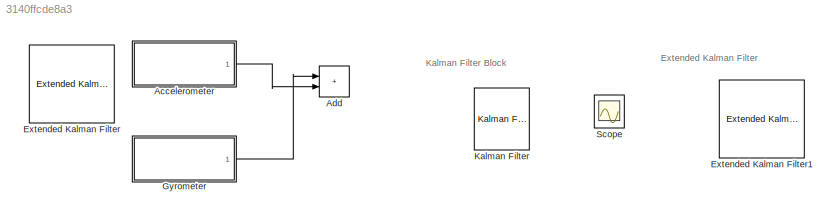
MODEL slx_3140ffcde8a3
KIND model
CONFIG AbsTol = auto
CONFIG EnableMultiTasking = off
CONFIG FixedStep = auto
CONFIG MaxStep = auto
CONFIG MinStep = auto
CONFIG RelTol = 1e-3
CONFIG SampleTimeConstraint = Unconstrained
CONFIG SolverName = VariableStepAuto
CONFIG StartTime = 0.0
CONFIG StopTime = 10.0
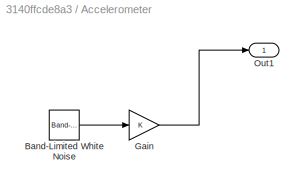
BLOCK [SubSystem] Accelerometer
  Ports = [0, 1]
  RequestExecContextInheritance = off
BLOCK [Reference] Accelerometer/Band-Limited White Noise  REF=simulink/Sources/Band-Limited
White Noise
  Ports = [0, 1]
  SourceBlock = simulink/Sources/Band-Limited\nWhite Noise
  SourceProductBaseCode = SL
  SourceType = Band-Limited White Noise.
BLOCK [Gain] Accelerometer/Gain
BLOCK [Outport] Accelerometer/Out1
BLOCK [Sum] Add
  IconShape = rectangular
  Ports = [2, 1]
BLOCK [Reference] Extended Kalman Filter  REF=sharedTrackingLibrary/Extended Kalman Filter
  Ports = [1, 1]
  SourceBlock = sharedTrackingLibrary/Extended Kalman Filter
  SourceProductBaseCode = AE,PW,CT,DR,TF,ID,LP,NV,AR,RO,RR,UV,VE
  SourceType = Extended Kalman Filter
BLOCK [Reference] Extended Kalman Filter1  REF=sharedTrackingLibrary/Extended Kalman Filter
  Ports = [1, 1]
  SourceBlock = sharedTrackingLibrary/Extended Kalman Filter
  SourceProductBaseCode = AE,PW,CT,DR,TF,ID,LP,NV,AR,RO,RR,UV,VE
  SourceType = Extended Kalman Filter
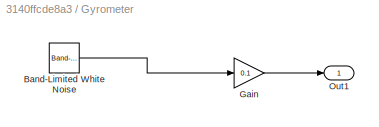
BLOCK [SubSystem] Gyrometer
  Ports = [0, 1]
  RequestExecContextInheritance = off
BLOCK [Reference] Gyrometer/Band-Limited White Noise  REF=simulink/Sources/Band-Limited
White Noise
  Ports = [0, 1]
  SourceBlock = simulink/Sources/Band-Limited\nWhite Noise
  SourceProductBaseCode = SL
  SourceType = Band-Limited White Noise.
BLOCK [Gain] Gyrometer/Gain
  Gain = 0.1
BLOCK [Outport] Gyrometer/Out1
BLOCK [Reference] Kalman Filter  REF=ctrlSharedLib/Kalman Filter
  Ports = [2, 2]
  SourceBlock = ctrlSharedLib/Kalman Filter
  SourceProductBaseCode = CT,ID
  SourceType = ctrlKalmanFilter
BLOCK [Scope] Scope
  Floating = off
  NumInputPorts = 2
  Ports = [2]
  ScopeSpecificationString = Simulink.scopes.TimeScopeBlockCfg('CurrentConfiguration', extmgr.ConfigurationSet(extmgr.Configuration('Core','General UI',true),extmgr.Configuration('Core','Source UI',true),extmgr.Configuration('Sources','WiredSimulink',true),extmgr.Configuration('Visuals','Time Domain',true),extmgr.Configuration('Tools','Plot Navigation',true),extmgr.Configuration('Tools','Measurements',true)),'Version','2021b'...<+1ch>
ANNOTATION (root): Extended Kalman Filter
ANNOTATION (root): Kalman Filter Block
LINE Accelerometer/Band-Limited White Noise:1 -> Accelerometer/Gain:1
LINE Accelerometer/Gain:1 -> Accelerometer/Out1:1
LINE Accelerometer:1 -> Add:2
LINE Gyrometer/Band-Limited White Noise:1 -> Gyrometer/Gain:1
LINE Gyrometer/Gain:1 -> Gyrometer/Out1:1
LINE Gyrometer:1 -> Add:1
